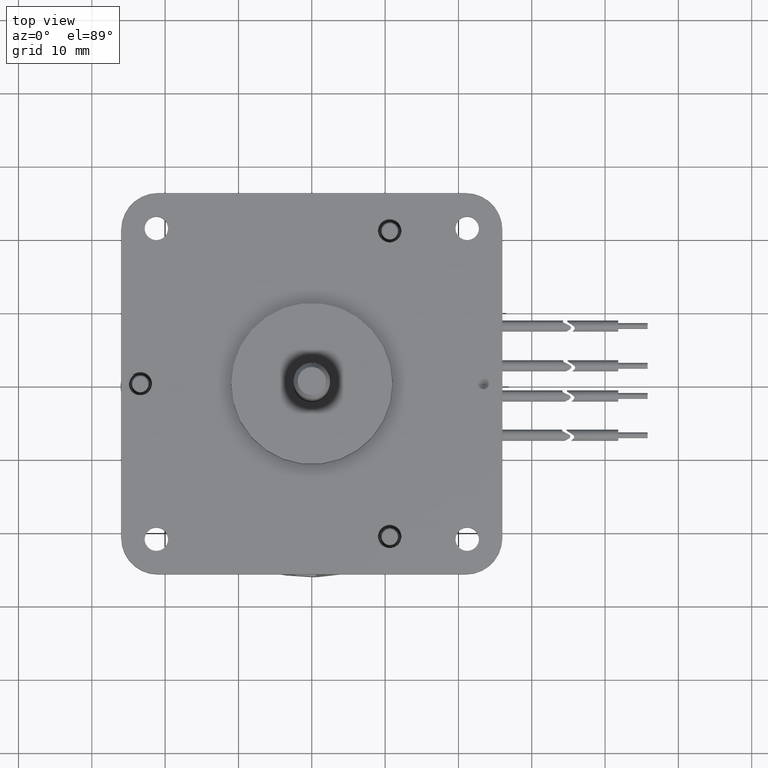
[diagram: clean part render]
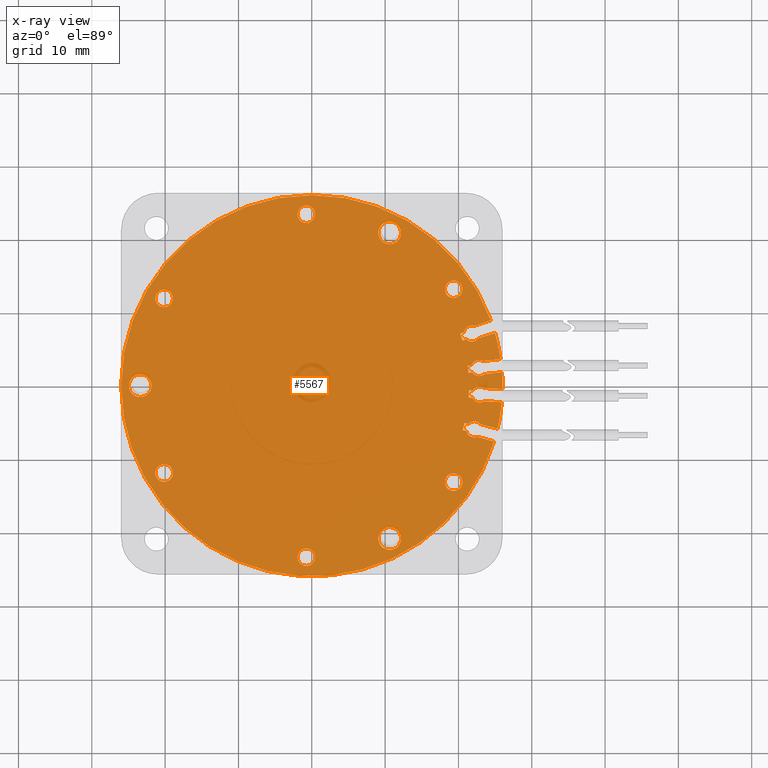
[diagram: x-ray — body ghosted, one internal face saturated and labeled with its STEP entity id]
A machine part, top view, then the same camera in x-ray: the body is ghosted and one INTERNAL B-rep face — a face not visible from any outside direction — is saturated and labeled: STEP entity #5567.
In plain terms, the highlighted planar face has unit normal (0, 0, 1).
Its self-contained STEP definition (entity closure, byte-faithful):
#2622=CARTESIAN_POINT('',(5.E-2,-8.825E0,0.E0));
#2623=DIRECTION('',(0.E0,-1.E0,0.E0));
#2624=DIRECTION('',(1.E0,0.E0,1.427051408794E-14));
#2625=AXIS2_PLACEMENT_3D('',#2622,#2623,#2624);
#2662=CARTESIAN_POINT('',(5.E-2,-8.825E0,0.E0));
#2663=DIRECTION('',(0.E0,1.E0,0.E0));
#2664=DIRECTION('',(9.578102181708E-1,0.E0,-2.874014369616E-1));
#2665=AXIS2_PLACEMENT_3D('',#2662,#2663,#2664);
#2667=DIRECTION('',(9.508482805458E-1,0.E0,-3.096571448927E-1));
#2668=VECTOR('',#2667,5.354706288501E-1);
#2669=CARTESIAN_POINT('',(2.027868273156E1,-8.825E0,-7.113601904715E0));
#2670=LINE('',#2669,#2668);
#2671=CARTESIAN_POINT('',(2.187429987479E1,-8.825E0,-7.107390870624E0));
#2672=DIRECTION('',(0.E0,-1.E0,0.E0));
#2673=DIRECTION('',(-9.876961968204E-1,0.E0,-1.563848547223E-1));
#2674=AXIS2_PLACEMENT_3D('',#2671,#2672,#2673);
#2676=DIRECTION('',(9.508482805459E-1,0.E0,-3.096571448923E-1));
#2677=VECTOR('',#2676,2.399510501235E0);
#2678=CARTESIAN_POINT('',(2.219697769954E1,-8.825E0,-8.158998697437E0));
#2679=LINE('',#2678,#2677);
#2680=CARTESIAN_POINT('',(5.E-2,-8.825E0,0.E0));
#2681=DIRECTION('',(0.E0,1.E0,0.E0));
#2682=DIRECTION('',(9.395595436074E-1,0.E0,-3.423855487842E-1));
#2683=AXIS2_PLACEMENT_3D('',#2680,#2681,#2682);
#2685=CARTESIAN_POINT('',(5.E-2,-8.825E0,0.E0));
#2686=DIRECTION('',(0.E0,1.E0,0.E0));
#2687=DIRECTION('',(-1.E0,0.E0,0.E0));
#2688=AXIS2_PLACEMENT_3D('',#2685,#2686,#2687);
#2690=DIRECTION('',(-9.657797417813E-1,0.E0,-2.593636257550E-1));
#2691=VECTOR('',#2690,2.400255518964E0);
#2692=CARTESIAN_POINT('',(2.491179763720E1,-8.825E0,7.608614739016E0));
#2693=LINE('',#2692,#2691);
#2694=CARTESIAN_POINT('',(2.221629400465E1,-8.825E0,5.952838037358E0));
#2695=DIRECTION('',(0.E0,-1.E0,0.E0));
#2696=DIRECTION('',(3.430777065760E-1,0.E0,9.393070250193E-1));
#2697=AXIS2_PLACEMENT_3D('',#2694,#2695,#2696);
#2699=DIRECTION('',(-9.657797417815E-1,0.E0,-2.593636257545E-1));
#2700=VECTOR('',#2699,5.347256111173E-1);
#2701=CARTESIAN_POINT('',(2.114034516326E1,-8.825E0,6.181604491874E0));
#2702=LINE('',#2701,#2700);
#2703=CARTESIAN_POINT('',(5.E-2,-8.825E0,0.E0));
#2704=DIRECTION('',(0.E0,1.E0,0.E0));
#2705=DIRECTION('',(9.594694121993E-1,0.E0,2.818127872434E-1));
#2706=AXIS2_PLACEMENT_3D('',#2703,#2704,#2705);
#2708=DIRECTION('',(9.657797417812E-1,0.E0,2.593636257554E-1));
#2709=VECTOR('',#2708,5.347256111149E-1);
#2710=CARTESIAN_POINT('',(2.088328162639E1,-8.825E0,5.077136376811E0));
#2711=LINE('',#2710,#2709);
#2712=CARTESIAN_POINT('',(2.221629400465E1,-8.825E0,5.952838037358E0));
#2713=DIRECTION('',(0.E0,-1.E0,0.E0));
#2714=DIRECTION('',(-7.423501960333E-1,0.E0,-6.700120793309E-1));
#2715=AXIS2_PLACEMENT_3D('',#2712,#2713,#2714);
#2717=DIRECTION('',(9.657797417814E-1,0.E0,2.593636257548E-1));
#2718=VECTOR('',#2717,2.400255518967E0);
#2719=CARTESIAN_POINT('',(2.306053400824E1,-8.825E0,5.247672229671E0));
#2720=LINE('',#2719,#2718);
#2721=CARTESIAN_POINT('',(5.E-2,-8.825E0,0.E0));
#2722=DIRECTION('',(0.E0,1.E0,0.E0));
#2723=DIRECTION('',(9.741789293677E-1,0.E0,2.257773539926E-1));
#2724=AXIS2_PLACEMENT_3D('',#2721,#2722,#2723);
#2726=DIRECTION('',(-9.986235608467E-1,0.E0,-5.244982099008E-2));
#2727=VECTOR('',#2726,2.401894203479E0);
#2728=CARTESIAN_POINT('',(2.595144759820E1,-8.825E0,2.261639298800E0));
#2729=LINE('',#2728,#2727);
#2730=CARTESIAN_POINT('',(2.296847929936E1,-8.825E0,1.203726993588E0));
#2731=DIRECTION('',(0.E0,-1.E0,0.E0));
#2732=DIRECTION('',(5.312546878047E-1,0.E0,8.472121674560E-1));
#2733=AXIS2_PLACEMENT_3D('',#2730,#2731,#2732);
#2735=DIRECTION('',(-9.986235608468E-1,0.E0,-5.244982098878E-2));
#2736=VECTOR('',#2735,5.330869266058E-1);
#2737=CARTESIAN_POINT('',(2.196380712118E1,-8.825E0,1.651648654599E0));
#2738=LINE('',#2737,#2736);
#2739=CARTESIAN_POINT('',(5.E-2,-8.825E0,0.E0));
#2740=DIRECTION('',(0.E0,1.E0,0.E0));
#2741=DIRECTION('',(9.971290377839E-1,0.E0,7.572108034186E-2));
#2742=AXIS2_PLACEMENT_3D('',#2739,#2740,#2741);
#2744=DIRECTION('',(9.986235608466E-1,0.E0,5.244982099241E-2));
#2745=VECTOR('',#2744,5.330869266056E-1);
#2746=CARTESIAN_POINT('',(2.148390377729E1,-8.825E0,6.250647798807E-1));
#2747=LINE('',#2746,#2745);
#2748=CARTESIAN_POINT('',(2.296847929936E1,-8.825E0,1.203726993588E0));
#2749=DIRECTION('',(0.E0,-1.E0,0.E0));
#2750=DIRECTION('',(-8.656566883480E-1,0.E0,-5.006380907586E-1));
#2751=AXIS2_PLACEMENT_3D('',#2748,#2749,#2750);
#2753=DIRECTION('',(9.986235608466E-1,0.E0,5.244982099093E-2));
#2754=VECTOR('',#2753,2.401894203479E0);
#2755=CARTESIAN_POINT('',(2.364726913372E1,-8.825E0,3.381379682642E-1));
#2756=LINE('',#2755,#2754);
#2757=CARTESIAN_POINT('',(5.E-2,-8.825E0,0.E0));
#2758=DIRECTION('',(0.E0,1.E0,0.E0));
#2759=DIRECTION('',(1.E0,0.E0,1.427051408794E-14));
#2760=AXIS2_PLACEMENT_3D('',#2757,#2758,#2759);
#2762=DIRECTION('',(-9.944980655085E-1,0.E0,1.047549411717E-1));
#2763=VECTOR('',#2762,2.401688375598E0);
#2764=CARTESIAN_POINT('',(2.598573328714E1,-8.825E0,-1.826947962748E0));
#2765=LINE('',#2764,#2763);
#2766=CARTESIAN_POINT('',(2.287400359347E1,-8.825E0,-2.404154655156E0));
#2767=DIRECTION('',(0.E0,-1.E0,0.E0));
#2768=DIRECTION('',(6.575047728915E-1,0.E0,7.534503790064E-1));
#2769=AXIS2_PLACEMENT_3D('',#2766,#2767,#2768);
#2771=DIRECTION('',(-9.944980655084E-1,0.E0,1.047549411726E-1));
#2772=VECTOR('',#2771,5.332927544877E-1);
#2773=CARTESIAN_POINT('',(2.195197593978E1,-8.825E0,-1.804267160840E0));
#2774=LINE('',#2773,#2772);
#2775=CARTESIAN_POINT('',(5.E-2,-8.825E0,0.E0));
#2776=DIRECTION('',(0.E0,1.E0,0.E0));
#2777=DIRECTION('',(9.966703043119E-1,0.E0,-8.153713572910E-2));
#2778=AXIS2_PLACEMENT_3D('',#2775,#2776,#2777);
#2780=DIRECTION('',(9.944980655085E-1,0.E0,-1.047549411714E-1));
#2781=VECTOR('',#2780,5.332927544883E-1);
#2782=CARTESIAN_POINT('',(2.131686238592E1,-8.825E0,-2.742900175224E0));
#2783=LINE('',#2782,#2781);
#2784=CARTESIAN_POINT('',(2.287400359347E1,-8.825E0,-2.404154655156E0));
#2785=DIRECTION('',(0.E0,-1.E0,0.E0));
#2786=DIRECTION('',(-9.334387225983E-1,0.E0,-3.587368829016E-1));
#2787=AXIS2_PLACEMENT_3D('',#2784,#2785,#2786);
#2789=DIRECTION('',(9.944980655085E-1,0.E0,-1.047549411714E-1));
#2790=VECTOR('',#2789,2.401688375598E0);
#2791=CARTESIAN_POINT('',(2.340869994954E1,-8.825E0,-3.365455756166E0));
#2792=LINE('',#2791,#2790);
#2793=CARTESIAN_POINT('',(5.E-2,-8.825E0,0.E0));
#2794=DIRECTION('',(0.E0,1.E0,0.E0));
#2795=DIRECTION('',(9.902759381933E-1,0.E0,-1.391170954102E-1));
#2796=AXIS2_PLACEMENT_3D('',#2793,#2794,#2795);
#2798=DIRECTION('',(-9.508482805459E-1,0.E0,3.096571448923E-1));
#2799=VECTOR('',#2798,2.399510501234E0);
#2800=CARTESIAN_POINT('',(2.503593099460E1,-8.825E0,-7.190497363405E0));
#2801=LINE('',#2800,#2799);
#2802=CARTESIAN_POINT('',(2.187429987479E1,-8.825E0,-7.107390870624E0));
#2803=DIRECTION('',(0.E0,-1.E0,0.E0));
#2804=DIRECTION('',(8.000551686900E-1,0.E0,5.999264347004E-1));
#2805=AXIS2_PLACEMENT_3D('',#2802,#2803,#2804);
#2807=DIRECTION('',(-9.508482805459E-1,0.E0,3.096571448923E-1));
#2808=VECTOR('',#2807,5.354706288496E-1);
#2809=CARTESIAN_POINT('',(2.109749120318E1,-8.825E0,-6.328565930274E0));
#2810=LINE('',#2809,#2808);
#2811=CARTESIAN_POINT('',(1.940368543802E1,-8.825E0,1.315275104174E1));
#2812=DIRECTION('',(0.E0,-1.E0,0.E0));
#2813=DIRECTION('',(8.270805742751E-1,0.E0,5.620833778513E-1));
#2814=AXIS2_PLACEMENT_3D('',#2811,#2812,#2813);
#2816=CARTESIAN_POINT('',(1.940368543802E1,-8.825E0,1.315275104174E1));
#2817=DIRECTION('',(0.E0,-1.E0,0.E0));
#2818=DIRECTION('',(-8.270805742738E-1,0.E0,-5.620833778532E-1));
#2819=AXIS2_PLACEMENT_3D('',#2816,#2817,#2818);
#2821=CARTESIAN_POINT('',(-6.850117624282E-1,-8.825E0,2.338845351256E1));
#2822=DIRECTION('',(0.E0,-1.E0,0.E0));
#2823=DIRECTION('',(-3.141075907813E-2,0.E0,9.995065603657E-1));
#2824=AXIS2_PLACEMENT_3D('',#2821,#2822,#2823);
#2826=CARTESIAN_POINT('',(-6.850117624282E-1,-8.825E0,2.338845351256E1));
#2827=DIRECTION('',(0.E0,-1.E0,0.E0));
#2828=DIRECTION('',(3.141075907810E-2,0.E0,-9.995065603657E-1));
#2829=AXIS2_PLACEMENT_3D('',#2826,#2827,#2828);
#2831=CARTESIAN_POINT('',(-2.009136343189E1,-8.825E0,1.191156912856E1));
#2832=DIRECTION('',(0.E0,-1.E0,0.E0));
#2833=DIRECTION('',(-8.607420270046E-1,0.E0,5.090414157493E-1));
#2834=AXIS2_PLACEMENT_3D('',#2831,#2832,#2833);
#2836=CARTESIAN_POINT('',(-2.009136343189E1,-8.825E0,1.191156912856E1));
#2837=DIRECTION('',(0.E0,-1.E0,0.E0));
#2838=DIRECTION('',(8.607420270035E-1,0.E0,-5.090414157511E-1));
#2839=AXIS2_PLACEMENT_3D('',#2836,#2837,#2838);
#2841=CARTESIAN_POINT('',(1.940368543802E1,-8.825E0,-1.315275104174E1));
#2842=DIRECTION('',(0.E0,-1.E0,0.E0));
#2843=DIRECTION('',(-8.270805742738E-1,0.E0,5.620833778532E-1));
#2844=AXIS2_PLACEMENT_3D('',#2841,#2842,#2843);
#2846=CARTESIAN_POINT('',(1.940368543802E1,-8.825E0,-1.315275104174E1));
#2847=DIRECTION('',(0.E0,-1.E0,0.E0));
#2848=DIRECTION('',(8.270805742751E-1,0.E0,-5.620833778513E-1));
#2849=AXIS2_PLACEMENT_3D('',#2846,#2847,#2848);
#2851=CARTESIAN_POINT('',(-6.850117624282E-1,-8.825E0,-2.338845351256E1));
#2852=DIRECTION('',(0.E0,-1.E0,0.E0));
#2853=DIRECTION('',(3.141075907810E-2,0.E0,9.995065603657E-1));
#2854=AXIS2_PLACEMENT_3D('',#2851,#2852,#2853);
#2856=CARTESIAN_POINT('',(-6.850117624282E-1,-8.825E0,-2.338845351256E1));
#2857=DIRECTION('',(0.E0,-1.E0,0.E0));
#2858=DIRECTION('',(-3.141075907813E-2,0.E0,-9.995065603657E-1));
#2859=AXIS2_PLACEMENT_3D('',#2856,#2857,#2858);
#2861=CARTESIAN_POINT('',(-2.009136343189E1,-8.825E0,-1.191156912856E1));
#2862=DIRECTION('',(0.E0,-1.E0,0.E0));
#2863=DIRECTION('',(8.607420270035E-1,0.E0,5.090414157511E-1));
#2864=AXIS2_PLACEMENT_3D('',#2861,#2862,#2863);
#2866=CARTESIAN_POINT('',(-2.009136343189E1,-8.825E0,-1.191156912856E1));
#2867=DIRECTION('',(0.E0,-1.E0,0.E0));
#2868=DIRECTION('',(-8.607420270046E-1,0.E0,-5.090414157493E-1));
#2869=AXIS2_PLACEMENT_3D('',#2866,#2867,#2868);
#2871=CARTESIAN_POINT('',(1.067337769391E1,-8.825E0,2.084955266601E1));
#2872=DIRECTION('',(0.E0,-1.E0,0.E0));
#2873=DIRECTION('',(-4.539904997410E-1,0.E0,-8.910065241876E-1));
#2874=AXIS2_PLACEMENT_3D('',#2871,#2872,#2873);
#2876=CARTESIAN_POINT('',(1.067337769391E1,-8.825E0,2.084955266601E1));
#2877=DIRECTION('',(0.E0,-1.E0,0.E0));
#2878=DIRECTION('',(4.539904997382E-1,0.E0,8.910065241891E-1));
#2879=AXIS2_PLACEMENT_3D('',#2876,#2877,#2878);
#2881=CARTESIAN_POINT('',(-2.335E1,-8.825E0,0.E0));
#2882=DIRECTION('',(0.E0,-1.E0,0.E0));
#2883=DIRECTION('',(1.E0,0.E0,0.E0));
#2884=AXIS2_PLACEMENT_3D('',#2881,#2882,#2883);
#2886=CARTESIAN_POINT('',(-2.335E1,-8.825E0,0.E0));
#2887=DIRECTION('',(0.E0,-1.E0,0.E0));
#2888=DIRECTION('',(-1.E0,0.E0,0.E0));
#2889=AXIS2_PLACEMENT_3D('',#2886,#2887,#2888);
#2891=CARTESIAN_POINT('',(1.067337769391E1,-8.825E0,-2.084955266601E1));
#2892=DIRECTION('',(0.E0,-1.E0,0.E0));
#2893=DIRECTION('',(-4.539904997410E-1,0.E0,8.910065241876E-1));
#2894=AXIS2_PLACEMENT_3D('',#2891,#2892,#2893);
#2896=CARTESIAN_POINT('',(1.067337769391E1,-8.825E0,-2.084955266601E1));
#2897=DIRECTION('',(0.E0,-1.E0,0.E0));
#2898=DIRECTION('',(4.539904997382E-1,0.E0,-8.910065241891E-1));
#2899=AXIS2_PLACEMENT_3D('',#2896,#2897,#2898);
#4534=CARTESIAN_POINT('',(2.491179763720E1,-8.825E0,7.608614739016E0));
#4535=VERTEX_POINT('',#4534);
#4536=CARTESIAN_POINT('',(-2.595E1,-8.825E0,0.E0));
#4537=VERTEX_POINT('',#4536);
#4576=CARTESIAN_POINT('',(2.605E1,-8.825E0,1.258005098807E-13));
#4577=VERTEX_POINT('',#4576);
#4578=CARTESIAN_POINT('',(2.604585727598E1,-8.825E0,4.641168892759E-1));
#4579=VERTEX_POINT('',#4578);
#4584=CARTESIAN_POINT('',(2.595144759820E1,-8.825E0,2.261639298800E0));
#4585=VERTEX_POINT('',#4584);
#4586=CARTESIAN_POINT('',(2.537865216356E1,-8.825E0,5.870211203809E0));
#4587=VERTEX_POINT('',#4586);
#4620=CARTESIAN_POINT('',(2.306053400824E1,-8.825E0,5.247672229671E0));
#4621=VERTEX_POINT('',#4620);
#4622=CARTESIAN_POINT('',(2.139970878901E1,-8.825E0,5.215824750094E0));
#4623=VERTEX_POINT('',#4622);
#4624=CARTESIAN_POINT('',(2.355285945594E1,-8.825E0,2.135660377790E0));
#4625=VERTEX_POINT('',#4624);
#4626=CARTESIAN_POINT('',(2.196380712119E1,-8.825E0,1.651648654601E0));
#4627=VERTEX_POINT('',#4626);
#4628=CARTESIAN_POINT('',(2.078783405829E1,-8.825E0,-7.279414210818E0));
#4629=CARTESIAN_POINT('',(2.219697769954E1,-8.825E0,-8.158998697436E0));
#4630=VERTEX_POINT('',#4628);
#4631=VERTEX_POINT('',#4629);
#4632=CARTESIAN_POINT('',(2.447854813379E1,-8.825E0,-8.902024268388E0));
#4633=VERTEX_POINT('',#4632);
#4634=CARTESIAN_POINT('',(2.259367948189E1,-8.825E0,6.986075764879E0));
#4635=VERTEX_POINT('',#4634);
#4636=CARTESIAN_POINT('',(2.114034516326E1,-8.825E0,6.181604491874E0));
#4637=VERTEX_POINT('',#4636);
#4638=CARTESIAN_POINT('',(9.969692419311E0,-8.825E0,-1.946849255352E1));
#4639=CARTESIAN_POINT('',(1.137706296850E1,-8.825E0,-2.223061277850E1));
#4640=VERTEX_POINT('',#4638);
#4641=VERTEX_POINT('',#4639);
#4642=CARTESIAN_POINT('',(-2.18E1,-8.825E0,0.E0));
#4643=CARTESIAN_POINT('',(-2.49E1,-8.825E0,0.E0));
#4644=VERTEX_POINT('',#4642);
#4645=VERTEX_POINT('',#4643);
#4646=CARTESIAN_POINT('',(9.969692419311E0,-8.825E0,1.946849255352E1));
#4647=CARTESIAN_POINT('',(1.137706296850E1,-8.825E0,2.223061277850E1));
#4648=VERTEX_POINT('',#4646);
#4649=VERTEX_POINT('',#4647);
#4650=CARTESIAN_POINT('',(-1.905847299949E1,-8.825E0,-1.130071942966E1));
#4651=CARTESIAN_POINT('',(-2.112425386430E1,-8.825E0,-1.252241882746E1));
#4652=VERTEX_POINT('',#4650);
#4653=VERTEX_POINT('',#4651);
#4654=CARTESIAN_POINT('',(-6.473188515345E-1,-8.825E0,-2.218904564012E1));
#4655=CARTESIAN_POINT('',(-7.227046733220E-1,-8.825E0,-2.458786138500E1));
#4656=VERTEX_POINT('',#4654);
#4657=VERTEX_POINT('',#4655);
#4658=CARTESIAN_POINT('',(1.841118874889E1,-8.825E0,-1.247825098832E1));
#4659=CARTESIAN_POINT('',(2.039618212715E1,-8.825E0,-1.382725109516E1));
#4660=VERTEX_POINT('',#4658);
#4661=VERTEX_POINT('',#4659);
#4662=CARTESIAN_POINT('',(-2.112425386430E1,-8.825E0,1.252241882746E1));
#4663=CARTESIAN_POINT('',(-1.905847299949E1,-8.825E0,1.130071942966E1));
#4664=VERTEX_POINT('',#4662);
#4665=VERTEX_POINT('',#4663);
#4666=CARTESIAN_POINT('',(-7.227046733220E-1,-8.825E0,2.458786138500E1));
#4667=CARTESIAN_POINT('',(-6.473188515345E-1,-8.825E0,2.218904564012E1));
#4668=VERTEX_POINT('',#4666);
#4669=VERTEX_POINT('',#4667);
#4670=CARTESIAN_POINT('',(2.039618212715E1,-8.825E0,1.382725109516E1));
#4671=CARTESIAN_POINT('',(1.841118874889E1,-8.825E0,1.247825098832E1));
#4672=VERTEX_POINT('',#4670);
#4673=VERTEX_POINT('',#4671);
#4674=CARTESIAN_POINT('',(2.201625694218E1,-8.825E0,6.530250937536E-1));
#4675=CARTESIAN_POINT('',(2.364726913373E1,-8.825E0,3.381379682668E-1));
#4676=VERTEX_POINT('',#4674);
#4677=VERTEX_POINT('',#4675);
#4678=CARTESIAN_POINT('',(2.598573328714E1,-8.825E0,-1.826947962747E0));
#4679=VERTEX_POINT('',#4678);
#4680=CARTESIAN_POINT('',(2.359725884365E1,-8.825E0,-1.575359238249E0));
#4681=VERTEX_POINT('',#4680);
#4682=CARTESIAN_POINT('',(2.195197593978E1,-8.825E0,-1.804267160839E0));
#4683=VERTEX_POINT('',#4682);
#4684=CARTESIAN_POINT('',(2.184722099861E1,-8.825E0,-2.798765226348E0));
#4685=CARTESIAN_POINT('',(2.340869994954E1,-8.825E0,-3.365455756166E0));
#4686=VERTEX_POINT('',#4684);
#4687=VERTEX_POINT('',#4685);
#4688=CARTESIAN_POINT('',(2.579717439303E1,-8.825E0,-3.617044480664E0));
#4689=VERTEX_POINT('',#4688);
#4690=CARTESIAN_POINT('',(2.503593099460E1,-8.825E0,-7.190497363405E0));
#4691=VERTEX_POINT('',#4690);
#4692=CARTESIAN_POINT('',(2.275436056035E1,-8.825E0,-6.447471792454E0));
#4693=VERTEX_POINT('',#4692);
#4694=CARTESIAN_POINT('',(2.109749120318E1,-8.825E0,-6.328565930274E0));
#4695=VERTEX_POINT('',#4694);
#4982=CARTESIAN_POINT('',(2.088328162639E1,-8.825E0,5.077136376811E0));
#4984=VERTEX_POINT('',#4982);
#5000=CARTESIAN_POINT('',(2.062391800063E1,-8.825E0,6.042916118591E0));
#5001=VERTEX_POINT('',#5000);
#5002=CARTESIAN_POINT('',(2.143145395630E1,-8.825E0,1.623688340727E0));
#5003=VERTEX_POINT('',#5002);
#5004=CARTESIAN_POINT('',(2.148390377729E1,-8.825E0,6.250647798807E-1));
#5005=VERTEX_POINT('',#5004);
#5006=CARTESIAN_POINT('',(2.142161732709E1,-8.825E0,-1.748402109716E0));
#5007=VERTEX_POINT('',#5006);
#5008=CARTESIAN_POINT('',(2.058833987646E1,-8.825E0,-6.162753624171E0));
#5009=VERTEX_POINT('',#5008);
#5010=CARTESIAN_POINT('',(2.027868273156E1,-8.825E0,-7.113601904715E0));
#5011=VERTEX_POINT('',#5010);
#5012=CARTESIAN_POINT('',(2.131686238592E1,-8.825E0,-2.742900175224E0));
#5013=VERTEX_POINT('',#5012);
#5442=CARTESIAN_POINT('',(5.E-2,-8.825E0,0.E0));
#5443=DIRECTION('',(0.E0,1.E0,0.E0));
#5444=DIRECTION('',(1.E0,0.E0,0.E0));
#5445=AXIS2_PLACEMENT_3D('',#5442,#5443,#5444);
#5446=PLANE('',#5445);
#5448=ORIENTED_EDGE('',*,*,#5447,.T.);
#5450=ORIENTED_EDGE('',*,*,#5449,.T.);
#5452=ORIENTED_EDGE('',*,*,#5451,.T.);
#5454=ORIENTED_EDGE('',*,*,#5453,.T.);
#5456=ORIENTED_EDGE('',*,*,#5455,.T.);
#5457=ORIENTED_EDGE('',*,*,#5320,.T.);
#5459=ORIENTED_EDGE('',*,*,#5458,.T.);
#5461=ORIENTED_EDGE('',*,*,#5460,.T.);
#5463=ORIENTED_EDGE('',*,*,#5462,.T.);
#5465=ORIENTED_EDGE('',*,*,#5464,.T.);
#5467=ORIENTED_EDGE('',*,*,#5466,.T.);
#5469=ORIENTED_EDGE('',*,*,#5468,.T.);
#5470=ORIENTED_EDGE('',*,*,#5433,.T.);
#5471=ORIENTED_EDGE('',*,*,#5404,.T.);
#5473=ORIENTED_EDGE('',*,*,#5472,.T.);
#5475=ORIENTED_EDGE('',*,*,#5474,.T.);
#5477=ORIENTED_EDGE('',*,*,#5476,.T.);
#5479=ORIENTED_EDGE('',*,*,#5478,.T.);
#5481=ORIENTED_EDGE('',*,*,#5480,.T.);
#5483=ORIENTED_EDGE('',*,*,#5482,.T.);
#5485=ORIENTED_EDGE('',*,*,#5484,.T.);
#5486=ORIENTED_EDGE('',*,*,#5396,.F.);
#5488=ORIENTED_EDGE('',*,*,#5487,.T.);
#5490=ORIENTED_EDGE('',*,*,#5489,.T.);
#5492=ORIENTED_EDGE('',*,*,#5491,.T.);
#5494=ORIENTED_EDGE('',*,*,#5493,.T.);
#5496=ORIENTED_EDGE('',*,*,#5495,.T.);
#5498=ORIENTED_EDGE('',*,*,#5497,.T.);
#5500=ORIENTED_EDGE('',*,*,#5499,.T.);
#5502=ORIENTED_EDGE('',*,*,#5501,.T.);
#5504=ORIENTED_EDGE('',*,*,#5503,.T.);
#5506=ORIENTED_EDGE('',*,*,#5505,.T.);
#5508=ORIENTED_EDGE('',*,*,#5507,.T.);
#5510=ORIENTED_EDGE('',*,*,#5509,.T.);
#5511=EDGE_LOOP('',(#5448,#5450,#5452,#5454,#5456,#5457,#5459,#5461,#5463,#5465,
#5467,#5469,#5470,#5471,#5473,#5475,#5477,#5479,#5481,#5483,#5485,#5486,#5488,
#5490,#5492,#5494,#5496,#5498,#5500,#5502,#5504,#5506,#5508,#5510));
#5512=FACE_OUTER_BOUND('',#5511,.F.);
#5514=ORIENTED_EDGE('',*,*,#5513,.T.);
#5516=ORIENTED_EDGE('',*,*,#5515,.T.);
#5517=EDGE_LOOP('',(#5514,#5516));
#5518=FACE_BOUND('',#5517,.F.);
#5520=ORIENTED_EDGE('',*,*,#5519,.T.);
#5522=ORIENTED_EDGE('',*,*,#5521,.T.);
#5523=EDGE_LOOP('',(#5520,#5522));
#5524=FACE_BOUND('',#5523,.F.);
#5526=ORIENTED_EDGE('',*,*,#5525,.T.);
#5528=ORIENTED_EDGE('',*,*,#5527,.T.);
#5529=EDGE_LOOP('',(#5526,#5528));
#5530=FACE_BOUND('',#5529,.F.);
#5532=ORIENTED_EDGE('',*,*,#5531,.T.);
#5534=ORIENTED_EDGE('',*,*,#5533,.T.);
#5535=EDGE_LOOP('',(#5532,#5534));
#5536=FACE_BOUND('',#5535,.F.);
#5538=ORIENTED_EDGE('',*,*,#5537,.T.);
#5540=ORIENTED_EDGE('',*,*,#5539,.T.);
#5541=EDGE_LOOP('',(#5538,#5540));
#5542=FACE_BOUND('',#5541,.F.);
#5544=ORIENTED_EDGE('',*,*,#5543,.T.);
#5546=ORIENTED_EDGE('',*,*,#5545,.T.);
#5547=EDGE_LOOP('',(#5544,#5546));
#5548=FACE_BOUND('',#5547,.F.);
#5550=ORIENTED_EDGE('',*,*,#5549,.T.);
#5552=ORIENTED_EDGE('',*,*,#5551,.T.);
#5553=EDGE_LOOP('',(#5550,#5552));
#5554=FACE_BOUND('',#5553,.F.);
#5556=ORIENTED_EDGE('',*,*,#5555,.T.);
#5558=ORIENTED_EDGE('',*,*,#5557,.T.);
#5559=EDGE_LOOP('',(#5556,#5558));
#5560=FACE_BOUND('',#5559,.F.);
#5562=ORIENTED_EDGE('',*,*,#5561,.T.);
#5564=ORIENTED_EDGE('',*,*,#5563,.T.);
#5565=EDGE_LOOP('',(#5562,#5564));
#5566=FACE_BOUND('',#5565,.F.);
#5567=ADVANCED_FACE('',(#5512,#5518,#5524,#5530,#5536,#5542,#5548,#5554,#5560,
#5566),#5446,.F.);
#2626=CIRCLE('',#2625,2.6E1);
#2666=CIRCLE('',#2665,2.144301604516E1);
#2675=CIRCLE('',#2674,1.1E0);
#2684=CIRCLE('',#2683,2.6E1);
#2689=CIRCLE('',#2688,2.6E1);
#2698=CIRCLE('',#2697,1.1E0);
#2707=CIRCLE('',#2706,2.144301604516E1);
#2716=CIRCLE('',#2715,1.1E0);
#2725=CIRCLE('',#2724,2.6E1);
#2734=CIRCLE('',#2733,1.1E0);
#2743=CIRCLE('',#2742,2.144301604516E1);
#2752=CIRCLE('',#2751,1.1E0);
#2761=CIRCLE('',#2760,2.6E1);
#2770=CIRCLE('',#2769,1.1E0);
#2779=CIRCLE('',#2778,2.144301604516E1);
#2788=CIRCLE('',#2787,1.1E0);
#2797=CIRCLE('',#2796,2.6E1);
#2806=CIRCLE('',#2805,1.1E0);
#2815=CIRCLE('',#2814,1.2E0);
#2820=CIRCLE('',#2819,1.2E0);
#2825=CIRCLE('',#2824,1.2E0);
#2830=CIRCLE('',#2829,1.2E0);
#2835=CIRCLE('',#2834,1.2E0);
#2840=CIRCLE('',#2839,1.2E0);
#2845=CIRCLE('',#2844,1.2E0);
#2850=CIRCLE('',#2849,1.2E0);
#2855=CIRCLE('',#2854,1.2E0);
#2860=CIRCLE('',#2859,1.2E0);
#2865=CIRCLE('',#2864,1.2E0);
#2870=CIRCLE('',#2869,1.2E0);
#2875=CIRCLE('',#2874,1.55E0);
#2880=CIRCLE('',#2879,1.55E0);
#2885=CIRCLE('',#2884,1.55E0);
#2890=CIRCLE('',#2889,1.55E0);
#2895=CIRCLE('',#2894,1.55E0);
#2900=CIRCLE('',#2899,1.55E0);
#5320=EDGE_CURVE('',#4537,#4535,#2689,.T.);
#5396=EDGE_CURVE('',#4577,#4579,#2626,.T.);
#5404=EDGE_CURVE('',#4587,#4585,#2725,.T.);
#5433=EDGE_CURVE('',#4621,#4587,#2720,.T.);
#5447=EDGE_CURVE('',#5009,#5011,#2666,.T.);
#5449=EDGE_CURVE('',#5011,#4630,#2670,.T.);
#5451=EDGE_CURVE('',#4630,#4631,#2675,.T.);
#5453=EDGE_CURVE('',#4631,#4633,#2679,.T.);
#5455=EDGE_CURVE('',#4633,#4537,#2684,.T.);
#5458=EDGE_CURVE('',#4535,#4635,#2693,.T.);
#5460=EDGE_CURVE('',#4635,#4637,#2698,.T.);
#5462=EDGE_CURVE('',#4637,#5001,#2702,.T.);
#5464=EDGE_CURVE('',#5001,#4984,#2707,.T.);
#5466=EDGE_CURVE('',#4984,#4623,#2711,.T.);
#5468=EDGE_CURVE('',#4623,#4621,#2716,.T.);
#5472=EDGE_CURVE('',#4585,#4625,#2729,.T.);
#5474=EDGE_CURVE('',#4625,#4627,#2734,.T.);
#5476=EDGE_CURVE('',#4627,#5003,#2738,.T.);
#5478=EDGE_CURVE('',#5003,#5005,#2743,.T.);
#5480=EDGE_CURVE('',#5005,#4676,#2747,.T.);
#5482=EDGE_CURVE('',#4676,#4677,#2752,.T.);
#5484=EDGE_CURVE('',#4677,#4579,#2756,.T.);
#5487=EDGE_CURVE('',#4577,#4679,#2761,.T.);
#5489=EDGE_CURVE('',#4679,#4681,#2765,.T.);
#5491=EDGE_CURVE('',#4681,#4683,#2770,.T.);
#5493=EDGE_CURVE('',#4683,#5007,#2774,.T.);
#5495=EDGE_CURVE('',#5007,#5013,#2779,.T.);
#5497=EDGE_CURVE('',#5013,#4686,#2783,.T.);
#5499=EDGE_CURVE('',#4686,#4687,#2788,.T.);
#5501=EDGE_CURVE('',#4687,#4689,#2792,.T.);
#5503=EDGE_CURVE('',#4689,#4691,#2797,.T.);
#5505=EDGE_CURVE('',#4691,#4693,#2801,.T.);
#5507=EDGE_CURVE('',#4693,#4695,#2806,.T.);
#5509=EDGE_CURVE('',#4695,#5009,#2810,.T.);
#5513=EDGE_CURVE('',#4672,#4673,#2815,.T.);
#5515=EDGE_CURVE('',#4673,#4672,#2820,.T.);
#5519=EDGE_CURVE('',#4668,#4669,#2825,.T.);
#5521=EDGE_CURVE('',#4669,#4668,#2830,.T.);
#5525=EDGE_CURVE('',#4664,#4665,#2835,.T.);
#5527=EDGE_CURVE('',#4665,#4664,#2840,.T.);
#5531=EDGE_CURVE('',#4660,#4661,#2845,.T.);
#5533=EDGE_CURVE('',#4661,#4660,#2850,.T.);
#5537=EDGE_CURVE('',#4656,#4657,#2855,.T.);
#5539=EDGE_CURVE('',#4657,#4656,#2860,.T.);
#5543=EDGE_CURVE('',#4652,#4653,#2865,.T.);
#5545=EDGE_CURVE('',#4653,#4652,#2870,.T.);
#5549=EDGE_CURVE('',#4648,#4649,#2875,.T.);
#5551=EDGE_CURVE('',#4649,#4648,#2880,.T.);
#5555=EDGE_CURVE('',#4644,#4645,#2885,.T.);
#5557=EDGE_CURVE('',#4645,#4644,#2890,.T.);
#5561=EDGE_CURVE('',#4640,#4641,#2895,.T.);
#5563=EDGE_CURVE('',#4641,#4640,#2900,.T.);